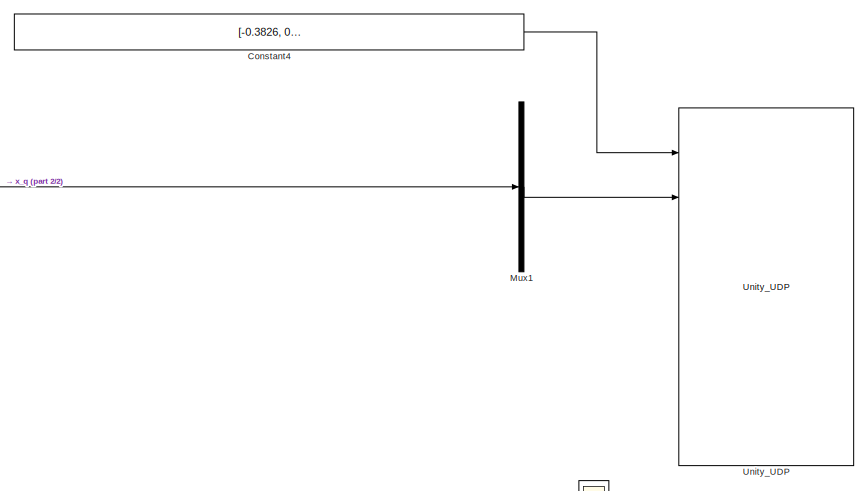
[diagram: root canvas - part 1/2, top right region]
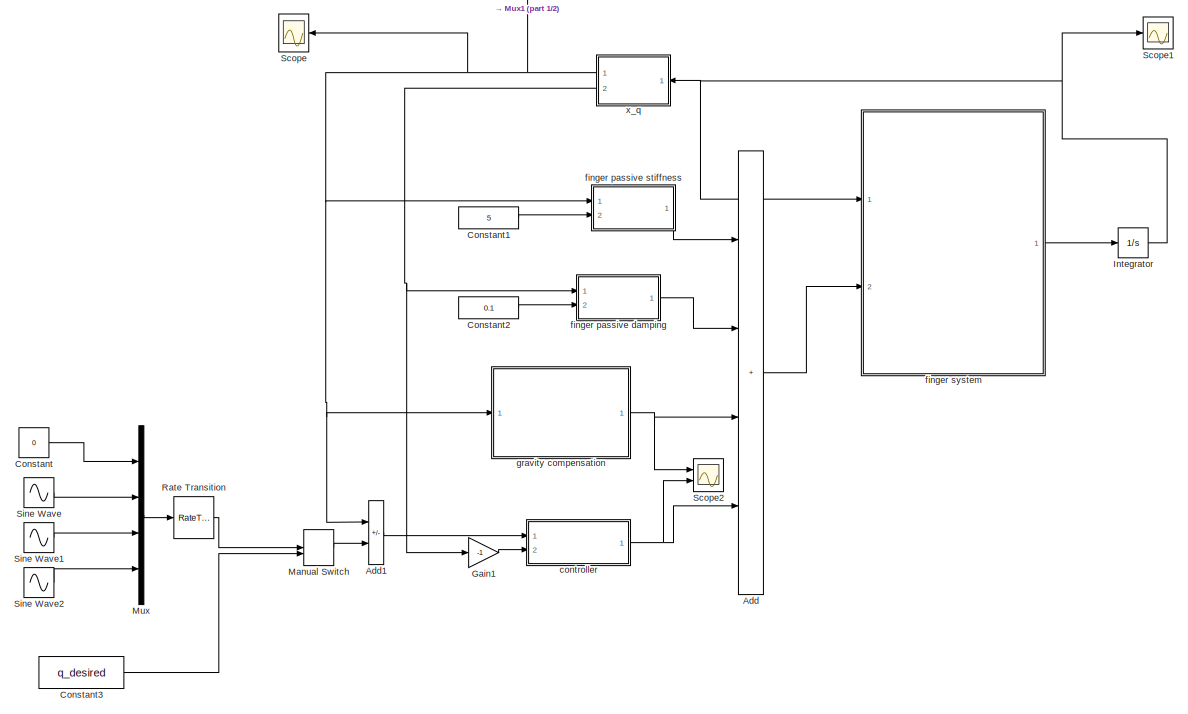
[diagram: root canvas - part 2/2, full width, bottom band]
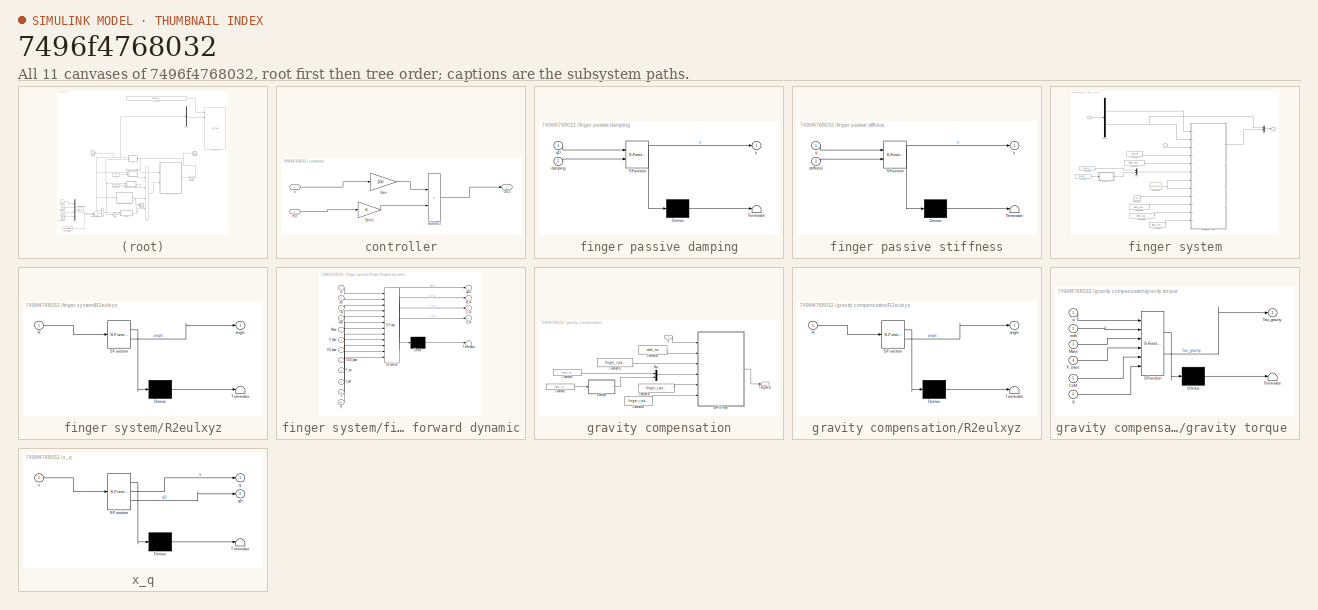
[diagram: thumbnail index - all 11 canvases of the model, root first then tree order]
MODEL slx_7496f4768032
KIND model
CONFIG AbsTol = auto
CONFIG EnableMultiTasking = off
CONFIG FixedStep = 1e-3
CONFIG MaxStep = auto
CONFIG MinStep = auto
CONFIG RelTol = 1e-3
CONFIG SampleTimeConstraint = Unconstrained
CONFIG SolverName = ode1
CONFIG StartTime = 0.0
CONFIG StopTime = inf
BLOCK [Sum] Add
  IconShape = rectangular
  Inputs = ++++
  Ports = [4, 1]
BLOCK [Sum] Add1
  IconShape = rectangular
  Inputs = -+
  Ports = [2, 1]
BLOCK [Constant] Constant
  Value = 0
BLOCK [Constant] Constant1
  Value = 5
BLOCK [Constant] Constant2
  Value = 0.1
BLOCK [Constant] Constant3
  Value = q_desired
BLOCK [Constant] Constant4
  Value = [-0.3826, 0.0537, 0.0830, -0.1231, 0.435, -0.0500, 0.1060, -0.1700, 1.7279, 2.9845,0,0]'
BLOCK [Gain] Gain1
  Gain = -1
BLOCK [Integrator] Integrator
  InitialCondition = [q_init;qD_init]
  Ports = [1, 1]
  WrappedStateLowerValue = -[pi,pi,pi,pi,1e4,1e4,1e4,1e4]
  WrappedStateUpperValue = [pi,pi,pi,pi,1e4,1e4,1e4,1e4]
BLOCK [ManualSwitch] Manual Switch
BLOCK [Mux] Mux
  DisplayOption = bar
  Ports = [4, 1]
BLOCK [Mux] Mux1
  DisplayOption = bar
  Inputs = [6,4,16]
  Ports = [3, 1]
BLOCK [RateTransition] Rate Transition
  OutPortSampleTime = 1e-2
BLOCK [Scope] Scope
  Floating = off
  NameLocation = top
  NumInputPorts = 1
  Ports = [1]
  ScopeSpecificationString = Simulink.scopes.TimeScopeBlockCfg('CurrentConfiguration', extmgr.ConfigurationSet(extmgr.Configuration('Core','General UI',true),extmgr.Configuration('Core','Source UI',true),extmgr.Configuration('Sources','WiredSimulink',true),extmgr.Configuration('Visuals','Time Domain',true,'SerializedDisplays',{struct('MinYLimReal','-0.12828','MaxYLimReal','1.15453','YLabelReal','','MinYLimMag','0.00000','MaxY...<+1411ch>
BLOCK [Scope] Scope1
  Floating = off
  NumInputPorts = 1
  Ports = [1]
  ScopeSpecificationString = Simulink.scopes.TimeScopeBlockCfg('CurrentConfiguration', extmgr.ConfigurationSet(extmgr.Configuration('Core','General UI',true),extmgr.Configuration('Core','Source UI',true),extmgr.Configuration('Sources','WiredSimulink',true,'DataLoggingVariableName','ScopeData1'),extmgr.Configuration('Visuals','Time Domain',true,'SerializedDisplays',{struct('MinYLimReal','-7.14147','MaxYLimReal','35.50459','YLa...<+1536ch>
BLOCK [Scope] Scope2
  Floating = off
  NumInputPorts = 2
  Ports = [2]
  ScopeSpecificationString = Simulink.scopes.TimeScopeBlockCfg('CurrentConfiguration', extmgr.ConfigurationSet(extmgr.Configuration('Core','General UI',true),extmgr.Configuration('Core','Source UI',true),extmgr.Configuration('Sources','WiredSimulink',true,'DataLoggingVariableName','ScopeData1'),extmgr.Configuration('Visuals','Time Domain',true,'SerializedDisplays',{struct('MinYLimReal','-0.06416','MaxYLimReal','0.01687','YLab...<+2137ch>
BLOCK [Sin] Sine Wave
  Amplitude = 0.5
  Bias = 0.5
  Ports = [0, 1]
BLOCK [Sin] Sine Wave1
  Amplitude = 0.5
  Bias = 0.5
  Ports = [0, 1]
BLOCK [Sin] Sine Wave2
  Amplitude = 0.5
  Bias = 0.5
  Ports = [0, 1]
BLOCK [Reference] Unity_UDP  REF=unity_lib_UDP/Unity_UDP
  Ports = [7]
  SourceBlock = unity_lib_UDP/Unity_UDP
BLOCK [SubSystem] controller
  Ports = [2, 1]
  RequestExecContextInheritance = off
BLOCK [Gain] controller/Gain
  Gain = 100
BLOCK [Gain] controller/Gain1
BLOCK [Outport] controller/Out1
BLOCK [Sum] controller/Subtract
  IconShape = rectangular
  Ports = [2, 1]
BLOCK [Inport] controller/e
BLOCK [Inport] controller/eD
  Port = 2
BLOCK [SubSystem] finger passive damping
  ErrorFcn = Stateflow.Translate.translate
  PermitHierarchicalResolution = ExplicitOnly
  Ports = [2, 1]
  RequestExecContextInheritance = off
  SFBlockType = MATLAB Function
  TreatAsAtomicUnit = on
BLOCK [Demux] finger passive damping/ Demux 
  Outputs = 1
  Ports = [1, 1]
BLOCK [S-Function] finger passive damping/ SFunction 
  EnableBusSupport = on
  FunctionName = sf_sfun
  PortCounts = [2 2]
  Ports = [2, 2]
  SFcnIsStateOwnerBlock = off
  SFunctionDeploymentMode = off
  Tag = Stateflow S-Function 4
BLOCK [Terminator] finger passive damping/ Terminator 
BLOCK [Inport] finger passive damping/damping
  Port = 2
BLOCK [Inport] finger passive damping/qD
BLOCK [Outport] finger passive damping/y
BLOCK [SubSystem] finger passive stiffness
  ErrorFcn = Stateflow.Translate.translate
  PermitHierarchicalResolution = ExplicitOnly
  Ports = [2, 1]
  RequestExecContextInheritance = off
  SFBlockType = MATLAB Function
  TreatAsAtomicUnit = on
BLOCK [Demux] finger passive stiffness/ Demux 
  Outputs = 1
  Ports = [1, 1]
BLOCK [S-Function] finger passive stiffness/ SFunction 
  EnableBusSupport = on
  FunctionName = sf_sfun
  PortCounts = [2 2]
  Ports = [2, 2]
  SFcnIsStateOwnerBlock = off
  SFunctionDeploymentMode = off
  Tag = Stateflow S-Function 3
BLOCK [Terminator] finger passive stiffness/ Terminator 
BLOCK [Inport] finger passive stiffness/q
BLOCK [Inport] finger passive stiffness/stiffness
  Port = 2
BLOCK [Outport] finger passive stiffness/y
BLOCK [SubSystem] finger system
  Ports = [2, 1]
  RequestExecContextInheritance = off
BLOCK [Constant] finger system/Constant1
  Value = finger_r.w_R_base
BLOCK [Constant] finger system/Constant10
  Value = [0,0,0,0,0,0]
BLOCK [Constant] finger system/Constant12
  Value = F_ext
BLOCK [Constant] finger system/Constant14
  Value = mdh_ne
BLOCK [Constant] finger system/Constant15
  Value = finger_r.par_dyn_f.mass_all
BLOCK [Constant] finger system/Constant16
  Value = finger_r.par_dyn_f.com_all
BLOCK [Constant] finger system/Constant17
  Value = finger_r.par_dyn_f.inertia_all
BLOCK [Constant] finger system/Constant18
  Value = finger_r.par_dyn_f.g
BLOCK [Constant] finger system/Constant9
  Value = finger_r.w_p_base
BLOCK [Demux] finger system/Demux
  Outputs = [4,4]
  Ports = [1, 2]
BLOCK [Mux] finger system/Mux
  DisplayOption = bar
  Inputs = 2
  Ports = [2, 1]
BLOCK [Mux] finger system/Mux3
  DisplayOption = bar
  Inputs = [3,3]
  Ports = [2, 1]
BLOCK [SubSystem] finger system/R2eulxyz
  ErrorFcn = Stateflow.Translate.translate
  PermitHierarchicalResolution = ExplicitOnly
  Ports = [1, 1]
  RequestExecContextInheritance = off
  SFBlockType = MATLAB Function
  TreatAsAtomicUnit = on
BLOCK [Demux] finger system/R2eulxyz/ Demux 
  Outputs = 1
  Ports = [1, 1]
BLOCK [S-Function] finger system/R2eulxyz/ SFunction 
  EnableBusSupport = on
  FunctionName = sf_sfun
  PortCounts = [1 2]
  Ports = [1, 2]
  SFcnIsStateOwnerBlock = off
  SFunctionDeploymentMode = off
  Tag = Stateflow S-Function 7
BLOCK [Terminator] finger system/R2eulxyz/ Terminator 
BLOCK [Inport] finger system/R2eulxyz/R
BLOCK [Outport] finger system/R2eulxyz/angle
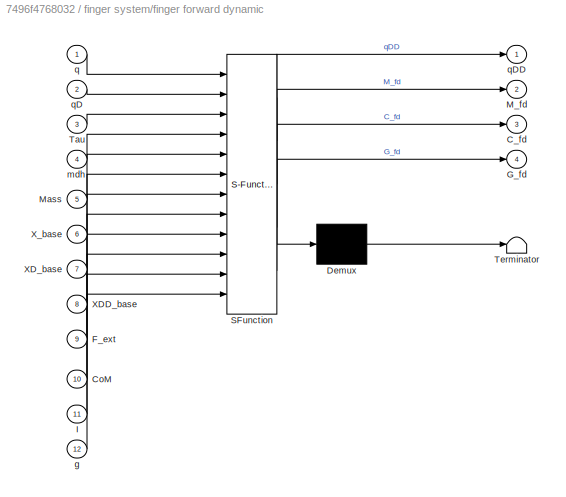
BLOCK [SubSystem] finger system/finger forward dynamic
  ErrorFcn = Stateflow.Translate.translate
  PermitHierarchicalResolution = ExplicitOnly
  Ports = [12, 4]
  RequestExecContextInheritance = off
  SFBlockType = MATLAB Function
  TreatAsAtomicUnit = on
BLOCK [Demux] finger system/finger forward dynamic/ Demux 
  Outputs = 1
  Ports = [1, 1]
BLOCK [S-Function] finger system/finger forward dynamic/ SFunction 
  EnableBusSupport = on
  FunctionName = sf_sfun
  PortCounts = [12 5]
  Ports = [12, 5]
  SFcnIsStateOwnerBlock = off
  SFunctionDeploymentMode = off
  Tag = Stateflow S-Function 2
BLOCK [Terminator] finger system/finger forward dynamic/ Terminator 
BLOCK [Outport] finger system/finger forward dynamic/C_fd
  Port = 3
BLOCK [Inport] finger system/finger forward dynamic/CoM
  Port = 10
BLOCK [Inport] finger system/finger forward dynamic/F_ext
  Port = 9
BLOCK [Outport] finger system/finger forward dynamic/G_fd
  Port = 4
BLOCK [Inport] finger system/finger forward dynamic/I
  Port = 11
BLOCK [Outport] finger system/finger forward dynamic/M_fd
  Port = 2
BLOCK [Inport] finger system/finger forward dynamic/Mass
  Port = 5
BLOCK [Inport] finger system/finger forward dynamic/Tau
  Port = 3
BLOCK [Inport] finger system/finger forward dynamic/XDD_base
  Port = 8
BLOCK [Inport] finger system/finger forward dynamic/XD_base
  Port = 7
BLOCK [Inport] finger system/finger forward dynamic/X_base
  Port = 6
BLOCK [Inport] finger system/finger forward dynamic/g
  Port = 12
BLOCK [Inport] finger system/finger forward dynamic/mdh
  Port = 4
BLOCK [Inport] finger system/finger forward dynamic/q
BLOCK [Inport] finger system/finger forward dynamic/qD
  Port = 2
BLOCK [Outport] finger system/finger forward dynamic/qDD
BLOCK [Inport] finger system/tau
  Port = 2
BLOCK [Inport] finger system/x
  PortDimensions = 8
BLOCK [Outport] finger system/xd
BLOCK [SubSystem] gravity compensation
  Ports = [1, 1]
  RequestExecContextInheritance = off
BLOCK [Constant] gravity compensation/Constant1
  Value = finger_r.w_R_base
BLOCK [Constant] gravity compensation/Constant14
  Value = mdh_ne
BLOCK [Constant] gravity compensation/Constant15
  Value = finger_r.par_dyn_f.mass_all
BLOCK [Constant] gravity compensation/Constant16
  Value = finger_r.par_dyn_f.com_all
BLOCK [Constant] gravity compensation/Constant18
  Value = finger_r.par_dyn_f.g
BLOCK [Constant] gravity compensation/Constant9
  Value = finger_r.w_p_base
BLOCK [Mux] gravity compensation/Mux
  DisplayOption = bar
  Inputs = [3,3]
  Ports = [2, 1]
BLOCK [SubSystem] gravity compensation/R2eulxyz
  ErrorFcn = Stateflow.Translate.translate
  PermitHierarchicalResolution = ExplicitOnly
  Ports = [1, 1]
  RequestExecContextInheritance = off
  SFBlockType = MATLAB Function
  TreatAsAtomicUnit = on
BLOCK [Demux] gravity compensation/R2eulxyz/ Demux 
  Outputs = 1
  Ports = [1, 1]
BLOCK [S-Function] gravity compensation/R2eulxyz/ SFunction 
  EnableBusSupport = on
  FunctionName = sf_sfun
  PortCounts = [1 2]
  Ports = [1, 2]
  SFcnIsStateOwnerBlock = off
  SFunctionDeploymentMode = off
  Tag = Stateflow S-Function 6
BLOCK [Terminator] gravity compensation/R2eulxyz/ Terminator 
BLOCK [Inport] gravity compensation/R2eulxyz/R
BLOCK [Outport] gravity compensation/R2eulxyz/angle
BLOCK [Outport] gravity compensation/Tau_gravity
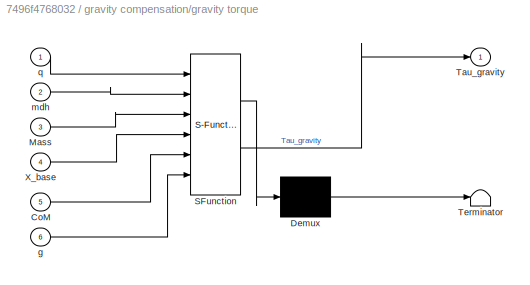
BLOCK [SubSystem] gravity compensation/gravity torque 
  ErrorFcn = Stateflow.Translate.translate
  PermitHierarchicalResolution = ExplicitOnly
  Ports = [6, 1]
  RequestExecContextInheritance = off
  SFBlockType = MATLAB Function
  TreatAsAtomicUnit = on
BLOCK [Demux] gravity compensation/gravity torque / Demux 
  Outputs = 1
  Ports = [1, 1]
BLOCK [S-Function] gravity compensation/gravity torque / SFunction 
  EnableBusSupport = on
  FunctionName = sf_sfun
  PortCounts = [6 2]
  Ports = [6, 2]
  SFcnIsStateOwnerBlock = off
  SFunctionDeploymentMode = off
  Tag = Stateflow S-Function 5
BLOCK [Terminator] gravity compensation/gravity torque / Terminator 
BLOCK [Inport] gravity compensation/gravity torque /CoM
  Port = 5
BLOCK [Inport] gravity compensation/gravity torque /Mass
  Port = 3
BLOCK [Outport] gravity compensation/gravity torque /Tau_gravity
BLOCK [Inport] gravity compensation/gravity torque /X_base
  Port = 4
BLOCK [Inport] gravity compensation/gravity torque /g
  Port = 6
BLOCK [Inport] gravity compensation/gravity torque /mdh
  Port = 2
BLOCK [Inport] gravity compensation/gravity torque /q
BLOCK [Inport] gravity compensation/q
BLOCK [SubSystem] x_q
  ErrorFcn = Stateflow.Translate.translate
  NameLocation = top
  PermitHierarchicalResolution = ExplicitOnly
  Ports = [1, 2]
  RequestExecContextInheritance = off
  SFBlockType = MATLAB Function
  TreatAsAtomicUnit = on
BLOCK [Demux] x_q/ Demux 
  Outputs = 1
  Ports = [1, 1]
BLOCK [S-Function] x_q/ SFunction 
  EnableBusSupport = on
  FunctionName = sf_sfun
  PortCounts = [1 3]
  Ports = [1, 3]
  SFcnIsStateOwnerBlock = off
  SFunctionDeploymentMode = off
  Tag = Stateflow S-Function 1
BLOCK [Terminator] x_q/ Terminator 
BLOCK [Outport] x_q/q
BLOCK [Outport] x_q/qD
  Port = 2
BLOCK [Inport] x_q/u
LINE Add1:1 -> controller:1
LINE Add:1 -> finger system:2
LINE Constant1:1 -> finger passive stiffness:2
LINE Constant2:1 -> finger passive damping:2
LINE Constant3:1 -> Manual Switch:2
LINE Constant4:1 -> Unity_UDP:1
LINE Constant:1 -> Mux:1
LINE Gain1:1 -> controller:2
NET Integrator:1 -> Scope1:1, finger system:1, x_q:1
LINE Manual Switch:1 -> Add1:2
LINE Mux1:1 -> Unity_UDP:2
LINE Mux:1 -> Rate Transition:1
LINE Rate Transition:1 -> Manual Switch:1
LINE Sine Wave1:1 -> Mux:3
LINE Sine Wave2:1 -> Mux:4
LINE Sine Wave:1 -> Mux:2
LINE controller/Gain1:1 -> controller/Subtract:2
LINE controller/Gain:1 -> controller/Subtract:1
LINE controller/Subtract:1 -> controller/Out1:1
LINE controller/e:1 -> controller/Gain:1
LINE controller/eD:1 -> controller/Gain1:1
NET controller:1 -> Add:4, Scope2:2
LINE finger passive damping:1 -> Add:2
LINE finger passive stiffness:1 -> Add:1
NET finger system/Constant10:1 -> finger system/finger forward dynamic:7, finger system/finger forward dynamic:8
LINE finger system/Constant12:1 -> finger system/finger forward dynamic:9
LINE finger system/Constant14:1 -> finger system/finger forward dynamic:4
LINE finger system/Constant15:1 -> finger system/finger forward dynamic:5
LINE finger system/Constant16:1 -> finger system/finger forward dynamic:10
LINE finger system/Constant17:1 -> finger system/finger forward dynamic:11
LINE finger system/Constant18:1 -> finger system/finger forward dynamic:12
LINE finger system/Constant1:1 -> finger system/R2eulxyz:1
LINE finger system/Constant9:1 -> finger system/Mux3:1
LINE finger system/Demux:1 -> finger system/finger forward dynamic:1
NET finger system/Demux:2 -> finger system/Mux:1, finger system/finger forward dynamic:2
LINE finger system/Mux3:1 -> finger system/finger forward dynamic:6
LINE finger system/Mux:1 -> finger system/xd:1
LINE finger system/R2eulxyz:1 -> finger system/Mux3:2
LINE finger system/finger forward dynamic:1 -> finger system/Mux:2
LINE finger system/tau:1 -> finger system/finger forward dynamic:3
LINE finger system/x:1 -> finger system/Demux:1
LINE finger system:1 -> Integrator:1
LINE gravity compensation/Constant14:1 -> gravity compensation/gravity torque :2
LINE gravity compensation/Constant15:1 -> gravity compensation/gravity torque :3
LINE gravity compensation/Constant16:1 -> gravity compensation/gravity torque :5
LINE gravity compensation/Constant18:1 -> gravity compensation/gravity torque :6
LINE gravity compensation/Constant1:1 -> gravity compensation/R2eulxyz:1
LINE gravity compensation/Constant9:1 -> gravity compensation/Mux:1
LINE gravity compensation/Mux:1 -> gravity compensation/gravity torque :4
LINE gravity compensation/R2eulxyz:1 -> gravity compensation/Mux:2
LINE gravity compensation/gravity torque :1 -> gravity compensation/Tau_gravity:1
LINE gravity compensation/q:1 -> gravity compensation/gravity torque :1
NET gravity compensation:1 -> Add:3, Scope2:1
NET x_q:1 -> Add1:1, Mux1:2, Scope:1, finger passive stiffness:1, gravity compensation:1
NET x_q:2 -> Gain1:1, finger passive damping:1
note: NET lines group one-source signal fan-out (src -> all destinations, sorted); 1:1 wires keep LINE
CHART x_q states=1 transitions=1
  STATE_LABEL 'eML_blk_kernel()'
  STATE_LABEL 'SCRIPT:\nfunction [q,qD] = fcn(u)\n\nq = u(1:4);\nqD = u(5:8);\n'
CHART finger system/finger forward dynamic states=1 transitions=1
  STATE_LABEL 'eML_blk_kernel()'
  STATE_LABEL 'SCRIPT:\n% recursive Newton-Euler method to compute inverse dynamic with mdh\n% parameters\n% Input:\n%     q,qD:             [n_qx1] joint states\n%     Tau               [n_q] joint torque\n%     mdh:              [n_q+1x4] in sequence of [alpha,a,theta,d] To be\n%                       noted that the theta should exclude from mdh parameters \n%     Mass:             [n_q+1] mass vector. the first mass ...<+2492ch>'
CHART finger passive stiffness states=1 transitions=1
  STATE_LABEL 'eML_blk_kernel()'
  STATE_LABEL 'SCRIPT:\nfunction y = fcn(q,stiffness)\n\ny = -stiffness.*q;\n'
CHART finger passive damping states=1 transitions=1
  STATE_LABEL 'eML_blk_kernel()'
  STATE_LABEL 'SCRIPT:\nfunction y = fcn(qD,damping)\n\ny = -damping.*qD;\n'
CHART gravity compensation/gravity torque  states=1 transitions=1
  STATE_LABEL 'eML_blk_kernel()'
  STATE_LABEL 'SCRIPT:\nfunction Tau_gravity = fcn(q,mdh, Mass, X_base, CoM, g)\n\nTau_gravity = invdyn_ne_mdh_all_fext_gravity(q,mdh, Mass, X_base, CoM, g);\n'
CHART gravity compensation/R2eulxyz states=1 transitions=1
  STATE_LABEL 'eML_blk_kernel()'
  STATE_LABEL 'SCRIPT:\nfunction angle = fcn(R)\n\nangle = R2euler_XYZ(R);\n'
CHART finger system/R2eulxyz states=1 transitions=1
  STATE_LABEL 'eML_blk_kernel()'
  STATE_LABEL 'SCRIPT:\nfunction angle = fcn(R)\n\nangle = R2euler_XYZ(R);\n'
CHART  states=0 transitions=0
CHART  states=0 transitions=0
CHART  states=0 transitions=0
CHART  states=0 transitions=0
CHART  states=0 transitions=0
CHART  states=0 transitions=0
CHART  states=0 transitions=0
